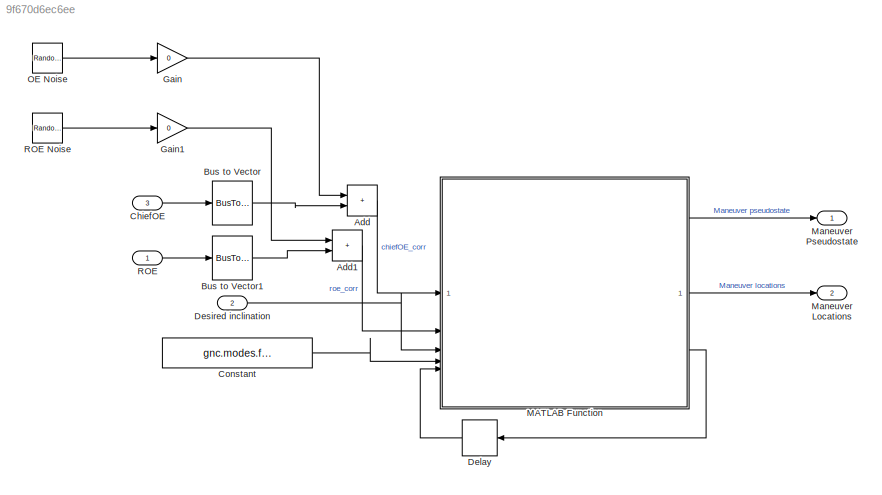
MODEL slx_9f670d6ec6ee
KIND model
CONFIG AbsTol = auto
CONFIG EnableMultiTasking = off
CONFIG FixedStep = dt
CONFIG MaxStep = auto
CONFIG MinStep = auto
CONFIG RelTol = 1e-3
CONFIG SampleTimeConstraint = Unconstrained
CONFIG SolverName = ode4
CONFIG StartTime = 0.0
CONFIG StopTime = 10.0
BLOCK [Sum] Add
  IconShape = rectangular
BLOCK [Sum] Add1
  IconShape = rectangular
BLOCK [BusToVector] Bus to Vector
BLOCK [BusToVector] Bus to Vector1
BLOCK [Inport] ChiefOE
  OutDataTypeStr = Bus: osculatingOrbitElements
  Port = 3
BLOCK [Constant] Constant
  Value = gnc.modes.formationBreak
BLOCK [Delay] Delay
  DelayLength = 1
  InitialCondition = 0
  InputPortMap = u0
BLOCK [Inport] Desired inclination
  Port = 2
  PortDimensions = 2
BLOCK [Gain] Gain
  Gain = 0
BLOCK [Gain] Gain1
  Gain = 0
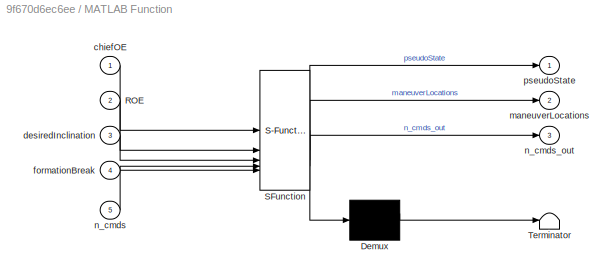
BLOCK [SubSystem] MATLAB Function
  ErrorFcn = Stateflow.Translate.translate
  LibrarySourceBlock = simulink/User-Defined\nFunctions/MATLAB Function
  PermitHierarchicalResolution = ExplicitOnly
  SFBlockType = MATLAB Function
  TreatAsAtomicUnit = on
BLOCK [Demux] MATLAB Function/ Demux 
  Outputs = 1
BLOCK [S-Function] MATLAB Function/ SFunction 
  EnableBusSupport = on
  FunctionName = sf_sfun
  PortCounts = [5 4]
  SFcnIsStateOwnerBlock = off
  SFunctionDeploymentMode = off
  Tag = Stateflow S-Function 2
BLOCK [Terminator] MATLAB Function/ Terminator 
BLOCK [Inport] MATLAB Function/ROE
  Port = 2
BLOCK [Inport] MATLAB Function/chiefOE
BLOCK [Inport] MATLAB Function/desiredInclination
  Port = 3
BLOCK [Inport] MATLAB Function/formationBreak
  Port = 4
BLOCK [Outport] MATLAB Function/maneuverLocations
  Port = 2
BLOCK [Inport] MATLAB Function/n_cmds
  Port = 5
BLOCK [Outport] MATLAB Function/n_cmds_out
  Port = 3
BLOCK [Outport] MATLAB Function/pseudoState
BLOCK [Outport] Maneuver Locations
  Port = 2
BLOCK [Outport] Maneuver Pseudostate
BLOCK [RandomNumber] OE Noise
  Mean = zeros(6,1)
  SampleTime = dt
  Seed = [1;2;3;4;5;6]
  Variance = [100,1e-6,1e-6,1e-6,1e-6,1e-46]'
BLOCK [Inport] ROE
  OutDataTypeStr = Bus: eccentricSingularROE
BLOCK [RandomNumber] ROE Noise
  Mean = zeros(6,1)
  SampleTime = dt
  Seed = [1;2;3;4;5;6]
  Variance = 1e-12*ones(6,1)
LINE Add1:1 -> MATLAB Function:2
LINE Add:1 -> MATLAB Function:1
LINE Bus to Vector1:1 -> Add1:2
LINE Bus to Vector:1 -> Add:2
LINE ChiefOE:1 -> Bus to Vector:1
LINE Constant:1 -> MATLAB Function:4
LINE Delay:1 -> MATLAB Function:5
LINE Desired inclination:1 -> MATLAB Function:3
LINE Gain1:1 -> Add1:1
LINE Gain:1 -> Add:1
LINE MATLAB Function:1 -> Maneuver Pseudostate:1
LINE MATLAB Function:2 -> Maneuver Locations:1
LINE MATLAB Function:3 -> Delay:1
LINE OE Noise:1 -> Gain:1
LINE ROE Noise:1 -> Gain1:1
LINE ROE:1 -> Bus to Vector1:1
CHART MATLAB Function states=1 transitions=1
  STATE_LABEL 'eML_blk_kernel()'
  STATE_LABEL 'SCRIPT:\nfunction [pseudoState, maneuverLocations, n_cmds_out] = mode2maneuver(chiefOE, ROE, desiredInclination,formationBreak, n_cmds )\n\n[pseudoState, maneuverLocations,n_cmds_out] = mode2maneuver(chiefOE, ROE, desiredInclination,n_cmds, formationBreak);\n\nend\n'
CHART  states=0 transitions=0
